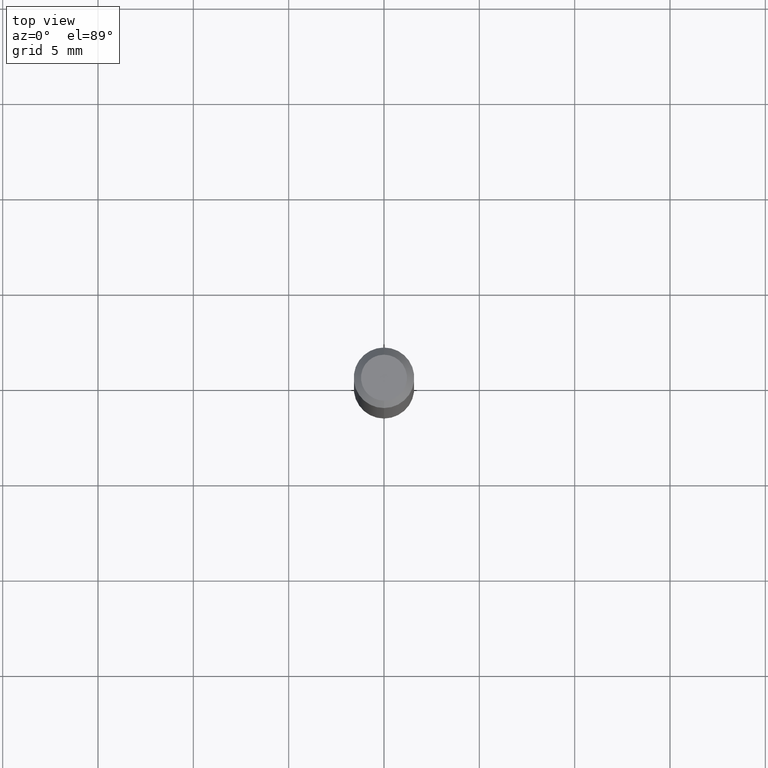
[diagram: clean part render]
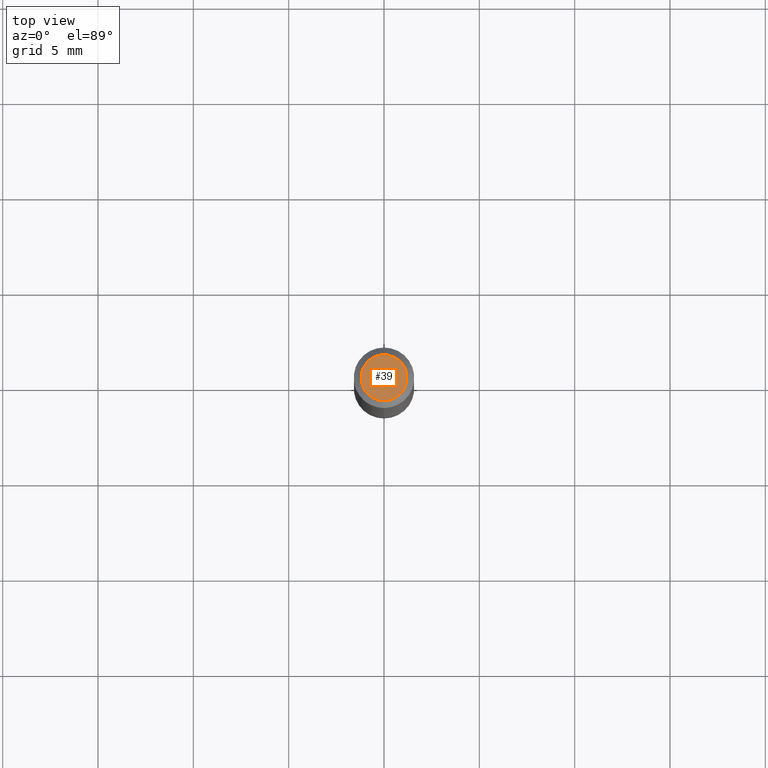
[diagram: same view with one face highlighted and labeled with its STEP entity id]
A machine part, top view. The second image highlights one B-rep face of the part: STEP entity #39.
In plain terms, the highlighted planar face has unit normal (0, -0, -1).
Its self-contained STEP definition (entity closure, byte-faithful):
#15 = CARTESIAN_POINT ( 'NONE',  ( 3.840629472727450339E-16, 0.04750000000000004219, -5.999736927781643760E-16 ) ) ;
#19 = VERTEX_POINT ( 'NONE', #69 ) ;
#37 = AXIS2_PLACEMENT_3D ( 'NONE', #228, #162, #278 ) ;
#38 = DIRECTION ( 'NONE',  ( -2.439138624469671930E-29, 3.500546519351259222E-15, 1.000000000000000000 ) ) ;
#39 = ADVANCED_FACE ( 'NONE', ( #285 ), #479, .F. ) ;
#46 = CIRCLE ( 'NONE', #183, 0.04750000000000004219 ) ;
#69 = CARTESIAN_POINT ( 'NONE',  ( -3.773273898774342241E-16, -0.04750000000000004219, -2.674217734397944423E-16 ) ) ;
#71 = DIRECTION ( 'NONE',  ( 6.982962677686265922E-15, 1.000000000000000000, -3.500546519351259222E-15 ) ) ;
#81 = EDGE_CURVE ( 'NONE', #19, #246, #46, .T. ) ;
#90 = ORIENTED_EDGE ( 'NONE', *, *, #367, .T. ) ;
#97 = ORIENTED_EDGE ( 'NONE', *, *, #81, .T. ) ;
#162 = DIRECTION ( 'NONE',  ( -2.439138624469671930E-29, 3.500546519351259222E-15, 1.000000000000000000 ) ) ;
#183 = AXIS2_PLACEMENT_3D ( 'NONE', #321, #38, #350 ) ;
#223 = CIRCLE ( 'NONE', #37, 0.04750000000000004219 ) ;
#228 = CARTESIAN_POINT ( 'NONE',  ( 1.057848892171050886E-44, -1.518179090085169302E-30, -4.336977331089794092E-16 ) ) ;
#245 = EDGE_LOOP ( 'NONE', ( #90, #97 ) ) ;
#246 = VERTEX_POINT ( 'NONE', #15 ) ;
#268 = CARTESIAN_POINT ( 'NONE',  ( 3.316907271900979054E-16, 0.04750000000000004219, -3.831248262236746468E-16 ) ) ;
#278 = DIRECTION ( 'NONE',  ( -6.982962677686265133E-15, -1.000000000000000000, 3.500546519351259222E-15 ) ) ;
#285 = FACE_OUTER_BOUND ( 'NONE', #245, .T. ) ;
#321 = CARTESIAN_POINT ( 'NONE',  ( 1.057848892171050886E-44, -1.518179090085169302E-30, -4.336977331089794092E-16 ) ) ;
#336 = AXIS2_PLACEMENT_3D ( 'NONE', #268, #420, #71 ) ;
#350 = DIRECTION ( 'NONE',  ( -6.982962677686265133E-15, -1.000000000000000000, 3.500546519351259222E-15 ) ) ;
#367 = EDGE_CURVE ( 'NONE', #246, #19, #223, .T. ) ;
#420 = DIRECTION ( 'NONE',  ( 2.439138624469671650E-29, -3.500546519351259222E-15, -1.000000000000000000 ) ) ;
#479 = PLANE ( 'NONE',  #336 ) ;